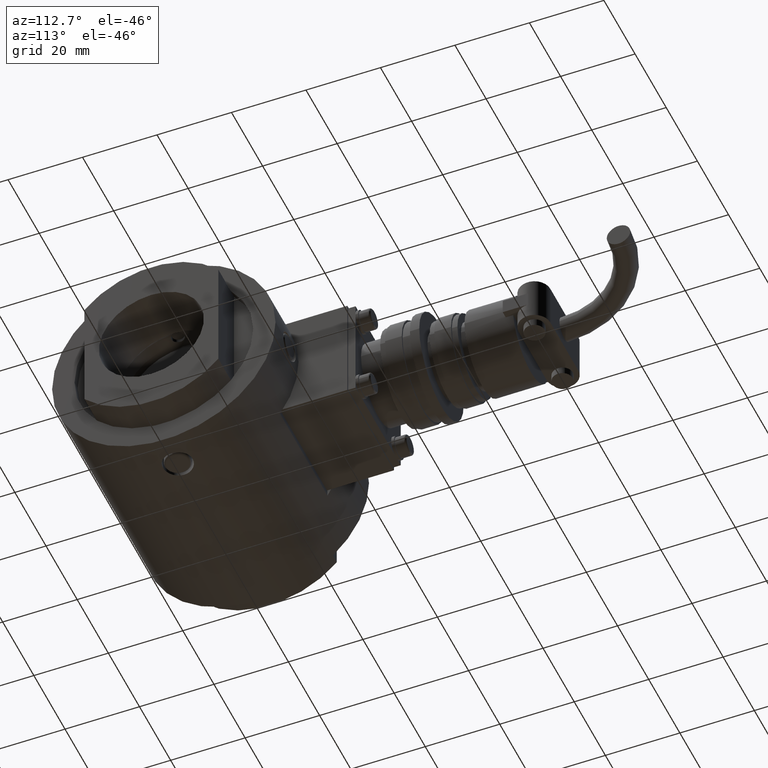
[diagram: clean part render]
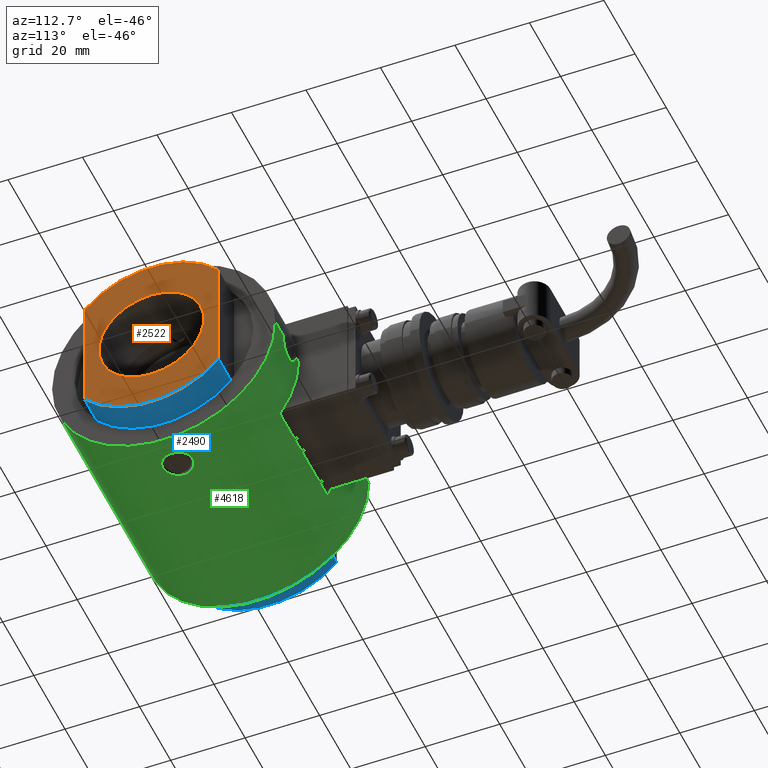
[diagram: same view with three faces highlighted in distinct colors, each labeled with its STEP entity id]
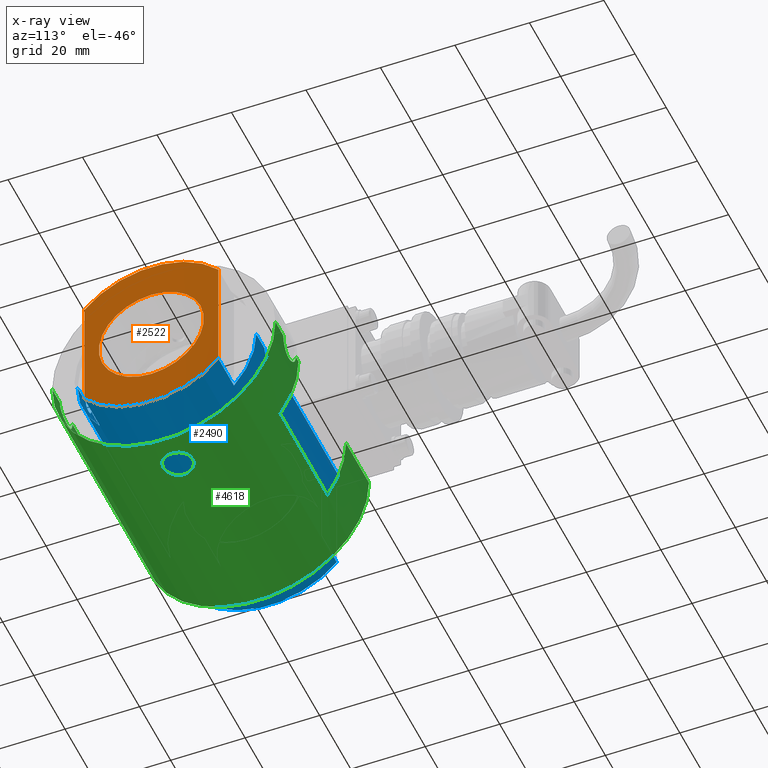
[diagram: x-ray of the same camera — body ghosted, the three highlighted faces saturated]
A machine part, auxiliary view with three faces highlighted in distinct colors.
The next image is the same camera in x-ray (body ghosted, the three faces saturated) — at least one of them is partly hidden behind the body in this view.
Their STEP definitions:

[orange] entity #2522 — the highlighted planar face has unit normal (1, 0, -0).
#171=CARTESIAN_POINT('',(41.999999999999972,18.0,-15.874507866387511));
#172=VERTEX_POINT('',#171);
#179=CARTESIAN_POINT('',(41.999999999999943,-17.999999999999972,-15.874507866387608));
#180=VERTEX_POINT('',#179);
#181=CARTESIAN_POINT('',(41.999999999999943,-2.842171E-014,0.0));
#182=DIRECTION('',(1.0,0.0,0.0));
#183=DIRECTION('',(0.0,1.0,0.0));
#184=AXIS2_PLACEMENT_3D('',#181,#182,#183);
#185=CIRCLE('',#184,24.0);
#186=EDGE_CURVE('',#180,#172,#185,.T.);
#1262=CARTESIAN_POINT('',(41.999999999999943,-2.842171E-014,-14.105000000000000));
#1263=VERTEX_POINT('',#1262);
#1270=CARTESIAN_POINT('',(41.999999999999943,-2.669440E-014,14.105000000000000));
#1271=VERTEX_POINT('',#1270);
#1272=CARTESIAN_POINT('',(41.999999999999943,-2.842171E-014,0.0));
#1273=DIRECTION('',(-1.0,0.0,0.0));
#1274=DIRECTION('',(0.0,0.0,-1.0));
#1275=AXIS2_PLACEMENT_3D('',#1272,#1273,#1274);
#1276=CIRCLE('',#1275,14.105000000000000);
#1277=EDGE_CURVE('',#1271,#1263,#1276,.T.);
#1841=CARTESIAN_POINT('',(41.999999999999943,-2.842171E-014,0.0));
#1842=DIRECTION('',(-1.0,0.0,0.0));
#1843=DIRECTION('',(0.0,0.0,-1.0));
#1844=AXIS2_PLACEMENT_3D('',#1841,#1842,#1843);
#1845=CIRCLE('',#1844,14.105000000000000);
#1846=EDGE_CURVE('',#1263,#1271,#1845,.T.);
#2289=CARTESIAN_POINT('',(41.999999999999943,-17.999999999999972,15.874507866387608));
#2290=VERTEX_POINT('',#2289);
#2291=CARTESIAN_POINT('',(41.999999999999943,-17.999999999999972,15.874507866387608));
#2292=DIRECTION('',(0.0,0.0,-1.0));
#2293=VECTOR('',#2292,31.749015732775216);
#2294=LINE('',#2291,#2293);
#2295=EDGE_CURVE('',#2290,#180,#2294,.T.);
#2432=CARTESIAN_POINT('',(41.999999999999972,18.0,15.874507866387511));
#2433=VERTEX_POINT('',#2432);
#2440=CARTESIAN_POINT('',(41.999999999999972,18.0,-15.874507866387511));
#2441=DIRECTION('',(0.0,0.0,1.0));
#2442=VECTOR('',#2441,31.749015732775021);
#2443=LINE('',#2440,#2442);
#2444=EDGE_CURVE('',#172,#2433,#2443,.T.);
#2475=CARTESIAN_POINT('',(41.999999999999943,-2.842171E-014,0.0));
#2476=DIRECTION('',(1.0,0.0,0.0));
#2477=DIRECTION('',(0.0,1.0,0.0));
#2478=AXIS2_PLACEMENT_3D('',#2475,#2476,#2477);
#2479=CIRCLE('',#2478,24.0);
#2480=EDGE_CURVE('',#2433,#2290,#2479,.T.);
#2507=CARTESIAN_POINT('',(41.999999999999943,9.499999999999975,0.0));
#2508=DIRECTION('',(1.0,0.0,0.0));
#2509=DIRECTION('',(0.0,0.0,-1.0));
#2510=AXIS2_PLACEMENT_3D('',#2507,#2508,#2509);
#2511=PLANE('',#2510);
#2512=ORIENTED_EDGE('',*,*,#2295,.T.);
#2513=ORIENTED_EDGE('',*,*,#186,.T.);
#2514=ORIENTED_EDGE('',*,*,#2444,.T.);
#2515=ORIENTED_EDGE('',*,*,#2480,.T.);
#2516=EDGE_LOOP('',(#2512,#2513,#2514,#2515));
#2517=FACE_OUTER_BOUND('',#2516,.T.);
#2518=ORIENTED_EDGE('',*,*,#1846,.T.);
#2519=ORIENTED_EDGE('',*,*,#1277,.T.);
#2520=EDGE_LOOP('',(#2518,#2519));
#2521=FACE_BOUND('',#2520,.T.);
#2522=ADVANCED_FACE('',(#2517,#2521),#2511,.T.);

[blue] entity #2490 — the highlighted cylindrical surface (partial cylindrical patch) has radius 24 mm, axis along (1, 0, -0).
#152=CARTESIAN_POINT('',(31.999999999999968,23.999999999999972,0.0));
#153=VERTEX_POINT('',#152);
#154=CARTESIAN_POINT('',(26.710999999999942,23.999999999999925,-5.151435E-014));
#155=VERTEX_POINT('',#154);
#156=CARTESIAN_POINT('',(31.999999999999968,23.999999999999972,0.0));
#157=DIRECTION('',(-1.0,0.0,0.0));
#158=VECTOR('',#157,5.289000000000026);
#159=LINE('',#156,#158);
#160=EDGE_CURVE('',#153,#155,#159,.T.);
#196=CARTESIAN_POINT('',(31.999999999999975,-24.000000000000028,-2.939055E-015));
#197=VERTEX_POINT('',#196);
#205=CARTESIAN_POINT('',(26.710999999999942,-23.999999999999982,5.151435E-014));
#206=VERTEX_POINT('',#205);
#207=CARTESIAN_POINT('',(31.999999999999975,-24.000000000000028,-2.939055E-015));
#208=DIRECTION('',(-1.0,0.0,0.0));
#209=VECTOR('',#208,5.289000000000034);
#210=LINE('',#207,#209);
#211=EDGE_CURVE('',#197,#206,#210,.T.);
#213=CARTESIAN_POINT('',(23.288999999999945,-23.999999999999982,5.151435E-014));
#214=VERTEX_POINT('',#213);
#252=CARTESIAN_POINT('',(-24.000000000000014,-24.000000000000028,-2.939055E-015));
#253=VERTEX_POINT('',#252);
#254=CARTESIAN_POINT('',(23.288999999999945,-23.999999999999982,5.151435E-014));
#255=DIRECTION('',(-1.0,0.0,0.0));
#256=VECTOR('',#255,47.288999999999959);
#257=LINE('',#254,#256);
#258=EDGE_CURVE('',#214,#253,#257,.T.);
#294=CARTESIAN_POINT('',(-24.000000000000014,23.999999999999972,0.0));
#295=VERTEX_POINT('',#294);
#303=CARTESIAN_POINT('',(23.288999999999945,23.999999999999925,-5.151435E-014));
#304=VERTEX_POINT('',#303);
#305=CARTESIAN_POINT('',(23.288999999999945,23.999999999999925,-5.151435E-014));
#306=DIRECTION('',(-1.0,0.0,0.0));
#307=VECTOR('',#306,47.288999999999959);
#308=LINE('',#305,#307);
#309=EDGE_CURVE('',#304,#295,#308,.T.);
#1151=CARTESIAN_POINT('',(26.710999999999942,2.842171E-014,23.999999999999954));
#1152=VERTEX_POINT('',#1151);
#1161=CARTESIAN_POINT('',(23.288999999999945,2.842171E-014,23.999999999999954));
#1162=VERTEX_POINT('',#1161);
#1163=CARTESIAN_POINT('',(23.288999999999945,2.842171E-014,23.999999999999954));
#1164=CARTESIAN_POINT('',(23.288999999999945,0.107457552573934,23.999999999999954));
#1165=CARTESIAN_POINT('',(23.299286205500231,0.218573954456432,23.999259147180929));
#1166=CARTESIAN_POINT('',(23.342603345747051,0.439588801994176,23.996228367647184));
#1167=CARTESIAN_POINT('',(23.375624890623364,0.549489114668587,23.993940394390005));
#1168=CARTESIAN_POINT('',(23.462943165792261,0.760255923911509,23.988187194264444));
#1169=CARTESIAN_POINT('',(23.517309414780307,0.861290967050378,23.984722610024971));
#1170=CARTESIAN_POINT('',(23.642936214653751,1.048127560892750,23.977284446447829));
#1171=CARTESIAN_POINT('',(23.714204683652646,1.133924088873096,23.973318440901018));
#1172=CARTESIAN_POINT('',(23.866075977586259,1.285795382806709,23.965652737863067));
#1173=CARTESIAN_POINT('',(23.951872536214818,1.357063858963572,23.961684770945734));
#1174=CARTESIAN_POINT('',(24.138709109839311,1.482690628596119,23.954239455248466));
#1175=CARTESIAN_POINT('',(24.239744101365691,1.537056844693317,23.950769730328034));
#1176=CARTESIAN_POINT('',(24.450510813647576,1.624375079665287,23.945006160533637));
#1177=CARTESIAN_POINT('',(24.560411080280137,1.657396622744442,23.942713042513528));
#1178=CARTESIAN_POINT('',(24.781425916302965,1.700713777604804,23.939675103223994));
#1179=CARTESIAN_POINT('',(24.892542353378431,1.711000000000029,23.938932286131724));
#1180=CARTESIAN_POINT('',(24.999999999999943,1.711000000000029,23.938932286131724));
#1181=CARTESIAN_POINT('',(25.107457646621455,1.711000000000029,23.938932286131724));
#1182=CARTESIAN_POINT('',(25.218574083696922,1.700713777604805,23.939675103223994));
#1183=CARTESIAN_POINT('',(25.439588919719750,1.657396622744442,23.942713042513528));
#1184=CARTESIAN_POINT('',(25.549489186352307,1.624375079665286,23.945006160533637));
#1185=CARTESIAN_POINT('',(25.760255898634195,1.537056844693317,23.950769730328034));
#1186=CARTESIAN_POINT('',(25.861290890160575,1.482690628596119,23.954239455248466));
#1187=CARTESIAN_POINT('',(26.048127463785068,1.357063858963572,23.961684770945734));
#1188=CARTESIAN_POINT('',(26.133924022413627,1.285795382806709,23.965652737863067));
#1189=CARTESIAN_POINT('',(26.285795316347240,1.133924088873097,23.973318440901018));
#1190=CARTESIAN_POINT('',(26.357063785346135,1.048127560892748,23.977284446447833));
#1191=CARTESIAN_POINT('',(26.482690585219579,0.861290967050376,23.984722610024974));
#1192=CARTESIAN_POINT('',(26.537056834207625,0.760255923911510,23.988187194264448));
#1193=CARTESIAN_POINT('',(26.624375109376523,0.549489114668588,23.993940394390005));
#1194=CARTESIAN_POINT('',(26.657396654252832,0.439588801994177,23.996228367647184));
#1195=CARTESIAN_POINT('',(26.700713794499652,0.218573954456434,23.999259147180929));
#1196=CARTESIAN_POINT('',(26.710999999999942,0.107457552573934,23.999999999999954));
#1197=CARTESIAN_POINT('',(26.710999999999942,2.842171E-014,23.999999999999954));
#1198=B_SPLINE_CURVE_WITH_KNOTS('',3,(#1163,#1164,#1165,#1166,#1167,#1168,#1169,#1170,#1171,#1172,#1173,#1174,#1175,#1176,#1177,#1178,#1179,#1180,#1181,#1182,#1183,#1184,#1185,#1186,#1187,#1188,#1189,#1190,#1191,#1192,#1193,#1194,#1195,#1196,#1197),.UNSPECIFIED.,.F.,.U.,(4,2,2,2,2,2,2,2,3,2,2,2,2,2,2,2,4),(7.736947171034997,8.059319828756713,8.381692486478428,8.704065144200145,9.026437801921862,9.348810741786394,9.671183681650927,9.993556621515459,10.315929561379994,10.638302501244526,10.960675441109061,11.283048380973593,11.605421320838126,11.927793978559842,12.250166636281559,12.572539294003276,12.894911951724993),.UNSPECIFIED.);
#1199=EDGE_CURVE('',#1162,#1152,#1198,.T.);
#1509=CARTESIAN_POINT('',(23.288999999999945,-23.999999999999982,5.151435E-014));
#1510=CARTESIAN_POINT('',(23.288999999999945,-23.999999999999982,0.107457552573957));
#1511=CARTESIAN_POINT('',(23.299286205500231,-23.999259147180958,0.218573954456455));
#1512=CARTESIAN_POINT('',(23.342603345747051,-23.996228367647213,0.439588801994199));
#1513=CARTESIAN_POINT('',(23.375624890623364,-23.993940394390034,0.549489114668610));
#1514=CARTESIAN_POINT('',(23.462943165792261,-23.988187194264473,0.760255923911532));
#1515=CARTESIAN_POINT('',(23.517309414780307,-23.984722610025003,0.861290967050400));
#1516=CARTESIAN_POINT('',(23.642936214653751,-23.977284446447861,1.048127560892773));
#1517=CARTESIAN_POINT('',(23.714204683652646,-23.973318440901046,1.133924088873119));
#1518=CARTESIAN_POINT('',(23.866075977586256,-23.965652737863092,1.285795382806731));
#1519=CARTESIAN_POINT('',(23.951872536214815,-23.961684770945766,1.357063858963590));
#1520=CARTESIAN_POINT('',(24.138709109839308,-23.954239455248498,1.482690628596139));
#1521=CARTESIAN_POINT('',(24.239744101365687,-23.950769730328062,1.537056844693340));
#1522=CARTESIAN_POINT('',(24.450510813647579,-23.945006160533666,1.624375079665310));
#1523=CARTESIAN_POINT('',(24.560411080280133,-23.942713042513557,1.657396622744465));
#1524=CARTESIAN_POINT('',(24.781425916302958,-23.939675103224022,1.700713777604826));
#1525=CARTESIAN_POINT('',(24.892542353378431,-23.938932286131752,1.711000000000052));
#1526=CARTESIAN_POINT('',(24.999999999999943,-23.938932286131752,1.711000000000052));
#1527=CARTESIAN_POINT('',(25.107457646621455,-23.938932286131752,1.711000000000052));
#1528=CARTESIAN_POINT('',(25.218574083696922,-23.939675103224022,1.700713777604828));
#1529=CARTESIAN_POINT('',(25.439588919719750,-23.942713042513557,1.657396622744465));
#1530=CARTESIAN_POINT('',(25.549489186352307,-23.945006160533666,1.624375079665309));
#1531=CARTESIAN_POINT('',(25.760255898634195,-23.950769730328062,1.537056844693340));
#1532=CARTESIAN_POINT('',(25.861290890160575,-23.954239455248494,1.482690628596142));
#1533=CARTESIAN_POINT('',(26.048127463785068,-23.961684770945762,1.357063858963595));
#1534=CARTESIAN_POINT('',(26.133924022413627,-23.965652737863095,1.285795382806732));
#1535=CARTESIAN_POINT('',(26.285795316347240,-23.973318440901046,1.133924088873120));
#1536=CARTESIAN_POINT('',(26.357063785346135,-23.977284446447861,1.048127560892771));
#1537=CARTESIAN_POINT('',(26.482690585219579,-23.984722610025003,0.861290967050399));
#1538=CARTESIAN_POINT('',(26.537056834207625,-23.988187194264476,0.760255923911533));
#1539=CARTESIAN_POINT('',(26.624375109376523,-23.993940394390034,0.549489114668611));
#1540=CARTESIAN_POINT('',(26.657396654252832,-23.996228367647213,0.439588801994200));
#1541=CARTESIAN_POINT('',(26.700713794499652,-23.999259147180958,0.218573954456457));
#1542=CARTESIAN_POINT('',(26.710999999999942,-23.999999999999982,0.107457552573957));
#1543=CARTESIAN_POINT('',(26.710999999999942,-23.999999999999982,5.151435E-014));
#1544=B_SPLINE_CURVE_WITH_KNOTS('',3,(#1509,#1510,#1511,#1512,#1513,#1514,#1515,#1516,#1517,#1518,#1519,#1520,#1521,#1522,#1523,#1524,#1525,#1526,#1527,#1528,#1529,#1530,#1531,#1532,#1533,#1534,#1535,#1536,#1537,#1538,#1539,#1540,#1541,#1542,#1543),.UNSPECIFIED.,.F.,.U.,(4,2,2,2,2,2,2,2,3,2,2,2,2,2,2,2,4),(7.736947171034997,8.059319828756713,8.381692486478428,8.704065144200145,9.026437801921862,9.348810741786394,9.671183681650929,9.993556621515463,10.315929561379996,10.638302501244528,10.960675441109062,11.283048380973595,11.605421320838127,11.927793978559844,12.250166636281561,12.572539294003278,12.894911951724994),.UNSPECIFIED.);
#1545=EDGE_CURVE('',#214,#206,#1544,.T.);
#1678=CARTESIAN_POINT('',(26.710999999999942,23.999999999999925,-5.151435E-014));
#1679=CARTESIAN_POINT('',(26.710999999999942,23.999999999999925,0.107457552573854));
#1680=CARTESIAN_POINT('',(26.700713794499652,23.999259147180901,0.218573954456354));
#1681=CARTESIAN_POINT('',(26.657396654252832,23.996228367647156,0.439588801994097));
#1682=CARTESIAN_POINT('',(26.624375109376523,23.993940394389980,0.549489114668507));
#1683=CARTESIAN_POINT('',(26.537056834207625,23.988187194264420,0.760255923911429));
#1684=CARTESIAN_POINT('',(26.482690585219579,23.984722610024946,0.861290967050297));
#1685=CARTESIAN_POINT('',(26.357063785346135,23.977284446447804,1.048127560892670));
#1686=CARTESIAN_POINT('',(26.285795316347240,23.973318440900997,1.133924088873017));
#1687=CARTESIAN_POINT('',(26.133924022413627,23.965652737863046,1.285795382806630));
#1688=CARTESIAN_POINT('',(26.048127463785068,23.961684770945713,1.357063858963492));
#1689=CARTESIAN_POINT('',(25.861290890160575,23.954239455248445,1.482690628596039));
#1690=CARTESIAN_POINT('',(25.760255898634195,23.950769730328012,1.537056844693236));
#1691=CARTESIAN_POINT('',(25.549489186352307,23.945006160533616,1.624375079665207));
#1692=CARTESIAN_POINT('',(25.439588919719746,23.942713042513507,1.657396622744364));
#1693=CARTESIAN_POINT('',(25.218574083696922,23.939675103223973,1.700713777604724));
#1694=CARTESIAN_POINT('',(25.107457646621455,23.938932286131703,1.710999999999949));
#1695=CARTESIAN_POINT('',(24.892542353378431,23.938932286131703,1.710999999999949));
#1696=CARTESIAN_POINT('',(24.781425916302968,23.939675103223973,1.700713777604724));
#1697=CARTESIAN_POINT('',(24.560411080280144,23.942713042513507,1.657396622744364));
#1698=CARTESIAN_POINT('',(24.450510813647583,23.945006160533616,1.624375079665207));
#1699=CARTESIAN_POINT('',(24.239744101365691,23.950769730328012,1.537056844693237));
#1700=CARTESIAN_POINT('',(24.138709109839311,23.954239455248445,1.482690628596039));
#1701=CARTESIAN_POINT('',(23.951872536214818,23.961684770945713,1.357063858963492));
#1702=CARTESIAN_POINT('',(23.866075977586259,23.965652737863046,1.285795382806629));
#1703=CARTESIAN_POINT('',(23.714204683652646,23.973318440900997,1.133924088873017));
#1704=CARTESIAN_POINT('',(23.642936214653751,23.977284446447804,1.048127560892669));
#1705=CARTESIAN_POINT('',(23.517309414780307,23.984722610024946,0.861290967050297));
#1706=CARTESIAN_POINT('',(23.462943165792261,23.988187194264420,0.760255923911430));
#1707=CARTESIAN_POINT('',(23.375624890623364,23.993940394389980,0.549489114668508));
#1708=CARTESIAN_POINT('',(23.342603345747055,23.996228367647156,0.439588801994098));
#1709=CARTESIAN_POINT('',(23.299286205500234,23.999259147180901,0.218573954456354));
#1710=CARTESIAN_POINT('',(23.288999999999945,23.999999999999925,0.107457552573854));
#1711=CARTESIAN_POINT('',(23.288999999999945,23.999999999999925,-5.151435E-014));
#1712=B_SPLINE_CURVE_WITH_KNOTS('',3,(#1678,#1679,#1680,#1681,#1682,#1683,#1684,#1685,#1686,#1687,#1688,#1689,#1690,#1691,#1692,#1693,#1694,#1695,#1696,#1697,#1698,#1699,#1700,#1701,#1702,#1703,#1704,#1705,#1706,#1707,#1708,#1709,#1710,#1711),.UNSPECIFIED.,.F.,.U.,(4,2,2,2,2,2,2,2,2,2,2,2,2,2,2,2,4),(2.578982390344999,2.901355048066716,3.223727705788432,3.546100363510149,3.868473021231865,4.190845961096398,4.513218900960932,4.835591840825465,5.157964780689998,5.480337720554531,5.802710660419065,6.125083600283597,6.447456540148131,6.769829197869846,7.092201855591563,7.414574513313280,7.736947171034997),.UNSPECIFIED.);
#1713=EDGE_CURVE('',#155,#304,#1712,.T.);
#1892=CARTESIAN_POINT('',(26.710999999999942,2.842171E-014,23.999999999999954));
#1893=CARTESIAN_POINT('',(26.710999999999942,-0.107457552573877,23.999999999999954));
#1894=CARTESIAN_POINT('',(26.700713794499652,-0.218573954456377,23.999259147180929));
#1895=CARTESIAN_POINT('',(26.657396654252832,-0.439588801994120,23.996228367647184));
#1896=CARTESIAN_POINT('',(26.624375109376523,-0.549489114668531,23.993940394390009));
#1897=CARTESIAN_POINT('',(26.537056834207625,-0.760255923911453,23.988187194264448));
#1898=CARTESIAN_POINT('',(26.482690585219579,-0.861290967050321,23.984722610024974));
#1899=CARTESIAN_POINT('',(26.357063785346135,-1.048127560892693,23.977284446447833));
#1900=CARTESIAN_POINT('',(26.285795316347240,-1.133924088873040,23.973318440901025));
#1901=CARTESIAN_POINT('',(26.133924022413627,-1.285795382806652,23.965652737863074));
#1902=CARTESIAN_POINT('',(26.048127463785068,-1.357063858963515,23.961684770945741));
#1903=CARTESIAN_POINT('',(25.861290890160575,-1.482690628596062,23.954239455248473));
#1904=CARTESIAN_POINT('',(25.760255898634195,-1.537056844693260,23.950769730328041));
#1905=CARTESIAN_POINT('',(25.549489186352307,-1.624375079665229,23.945006160533644));
#1906=CARTESIAN_POINT('',(25.439588919719750,-1.657396622744386,23.942713042513535));
#1907=CARTESIAN_POINT('',(25.218574083696922,-1.700713777604748,23.939675103224001));
#1908=CARTESIAN_POINT('',(25.107457646621455,-1.710999999999972,23.938932286131731));
#1909=CARTESIAN_POINT('',(24.892542353378431,-1.710999999999972,23.938932286131731));
#1910=CARTESIAN_POINT('',(24.781425916302968,-1.700713777604747,23.939675103224001));
#1911=CARTESIAN_POINT('',(24.560411080280144,-1.657396622744387,23.942713042513535));
#1912=CARTESIAN_POINT('',(24.450510813647583,-1.624375079665230,23.945006160533644));
#1913=CARTESIAN_POINT('',(24.239744101365691,-1.537056844693260,23.950769730328041));
#1914=CARTESIAN_POINT('',(24.138709109839311,-1.482690628596062,23.954239455248473));
#1915=CARTESIAN_POINT('',(23.951872536214818,-1.357063858963515,23.961684770945741));
#1916=CARTESIAN_POINT('',(23.866075977586259,-1.285795382806652,23.965652737863074));
#1917=CARTESIAN_POINT('',(23.714204683652646,-1.133924088873040,23.973318440901025));
#1918=CARTESIAN_POINT('',(23.642936214653751,-1.048127560892692,23.977284446447833));
#1919=CARTESIAN_POINT('',(23.517309414780307,-0.861290967050320,23.984722610024974));
#1920=CARTESIAN_POINT('',(23.462943165792261,-0.760255923911453,23.988187194264448));
#1921=CARTESIAN_POINT('',(23.375624890623364,-0.549489114668531,23.993940394390009));
#1922=CARTESIAN_POINT('',(23.342603345747055,-0.439588801994121,23.996228367647184));
#1923=CARTESIAN_POINT('',(23.299286205500234,-0.218573954456377,23.999259147180929));
#1924=CARTESIAN_POINT('',(23.288999999999945,-0.107457552573877,23.999999999999954));
#1925=CARTESIAN_POINT('',(23.288999999999945,2.842171E-014,23.999999999999954));
#1926=B_SPLINE_CURVE_WITH_KNOTS('',3,(#1892,#1893,#1894,#1895,#1896,#1897,#1898,#1899,#1900,#1901,#1902,#1903,#1904,#1905,#1906,#1907,#1908,#1909,#1910,#1911,#1912,#1913,#1914,#1915,#1916,#1917,#1918,#1919,#1920,#1921,#1922,#1923,#1924,#1925),.UNSPECIFIED.,.F.,.U.,(4,2,2,2,2,2,2,2,2,2,2,2,2,2,2,2,4),(2.578982390344999,2.901355048066716,3.223727705788432,3.546100363510148,3.868473021231865,4.190845961096398,4.513218900960931,4.835591840825464,5.157964780689998,5.480337720554531,5.802710660419065,6.125083600283597,6.447456540148131,6.769829197869846,7.092201855591563,7.414574513313280,7.736947171034997),.UNSPECIFIED.);
#1927=EDGE_CURVE('',#1152,#1162,#1926,.T.);
#2265=CARTESIAN_POINT('',(31.999999999999972,-18.0,15.874507866387576));
#2266=VERTEX_POINT('',#2265);
#2273=CARTESIAN_POINT('',(31.999999999999972,-2.842171E-014,0.0));
#2274=DIRECTION('',(-1.0,0.0,0.0));
#2275=DIRECTION('',(0.0,1.0,0.0));
#2276=AXIS2_PLACEMENT_3D('',#2273,#2274,#2275);
#2277=CIRCLE('',#2276,24.0);
#2278=EDGE_CURVE('',#197,#2266,#2277,.T.);
#2289=CARTESIAN_POINT('',(41.999999999999943,-17.999999999999972,15.874507866387608));
#2290=VERTEX_POINT('',#2289);
#2297=CARTESIAN_POINT('',(31.999999999999972,-18.0,15.874507866387576));
#2298=DIRECTION('',(1.0,0.0,0.0));
#2299=VECTOR('',#2298,9.999999999999972);
#2300=LINE('',#2297,#2299);
#2301=EDGE_CURVE('',#2266,#2290,#2300,.T.);
#2313=CARTESIAN_POINT('',(-24.000000000000014,18.0,15.874507866387511));
#2314=VERTEX_POINT('',#2313);
#2321=CARTESIAN_POINT('',(-24.000000000000014,-2.842171E-014,0.0));
#2322=DIRECTION('',(1.0,0.0,0.0));
#2323=DIRECTION('',(0.0,1.0,0.0));
#2324=AXIS2_PLACEMENT_3D('',#2321,#2322,#2323);
#2325=CIRCLE('',#2324,24.0);
#2326=EDGE_CURVE('',#295,#2314,#2325,.T.);
#2337=CARTESIAN_POINT('',(-34.000000000000028,18.0,15.874507866387511));
#2338=VERTEX_POINT('',#2337);
#2345=CARTESIAN_POINT('',(-24.000000000000014,18.0,15.874507866387511));
#2346=DIRECTION('',(-1.0,0.0,0.0));
#2347=VECTOR('',#2346,10.000000000000014);
#2348=LINE('',#2345,#2347);
#2349=EDGE_CURVE('',#2314,#2338,#2348,.T.);
#2360=CARTESIAN_POINT('',(-24.000000000000014,-18.0,15.874507866387576));
#2361=VERTEX_POINT('',#2360);
#2362=CARTESIAN_POINT('',(-24.000000000000014,-2.842171E-014,0.0));
#2363=DIRECTION('',(1.0,0.0,0.0));
#2364=DIRECTION('',(0.0,1.0,0.0));
#2365=AXIS2_PLACEMENT_3D('',#2362,#2363,#2364);
#2366=CIRCLE('',#2365,24.0);
#2367=EDGE_CURVE('',#2361,#253,#2366,.T.);
#2384=CARTESIAN_POINT('',(-34.000000000000028,-18.0,15.874507866387576));
#2385=VERTEX_POINT('',#2384);
#2386=CARTESIAN_POINT('',(-34.000000000000028,-18.0,15.874507866387576));
#2387=DIRECTION('',(1.0,0.0,0.0));
#2388=VECTOR('',#2387,10.000000000000014);
#2389=LINE('',#2386,#2388);
#2390=EDGE_CURVE('',#2385,#2361,#2389,.T.);
#2408=CARTESIAN_POINT('',(31.999999999999972,18.0,15.874507866387511));
#2409=VERTEX_POINT('',#2408);
#2410=CARTESIAN_POINT('',(31.999999999999972,-2.842171E-014,0.0));
#2411=DIRECTION('',(-1.0,0.0,0.0));
#2412=DIRECTION('',(0.0,1.0,0.0));
#2413=AXIS2_PLACEMENT_3D('',#2410,#2411,#2412);
#2414=CIRCLE('',#2413,24.0);
#2415=EDGE_CURVE('',#2409,#153,#2414,.T.);
#2432=CARTESIAN_POINT('',(41.999999999999972,18.0,15.874507866387511));
#2433=VERTEX_POINT('',#2432);
#2434=CARTESIAN_POINT('',(41.999999999999972,18.0,15.874507866387511));
#2435=DIRECTION('',(-1.0,0.0,0.0));
#2436=VECTOR('',#2435,10.0);
#2437=LINE('',#2434,#2436);
#2438=EDGE_CURVE('',#2433,#2409,#2437,.T.);
#2451=CARTESIAN_POINT('',(3.999999999999957,-2.842171E-014,0.0));
#2452=DIRECTION('',(1.0,0.0,0.0));
#2453=DIRECTION('',(0.0,1.0,0.0));
#2454=AXIS2_PLACEMENT_3D('',#2451,#2452,#2453);
#2455=CYLINDRICAL_SURFACE('',#2454,24.0);
#2456=ORIENTED_EDGE('',*,*,#160,.T.);
#2457=ORIENTED_EDGE('',*,*,#1713,.T.);
#2458=ORIENTED_EDGE('',*,*,#309,.T.);
#2459=ORIENTED_EDGE('',*,*,#2326,.T.);
#2460=ORIENTED_EDGE('',*,*,#2349,.T.);
#2461=CARTESIAN_POINT('',(-34.000000000000028,-2.842171E-014,0.0));
#2462=DIRECTION('',(1.0,0.0,0.0));
#2463=DIRECTION('',(0.0,1.0,0.0));
#2464=AXIS2_PLACEMENT_3D('',#2461,#2462,#2463);
#2465=CIRCLE('',#2464,24.0);
#2466=EDGE_CURVE('',#2338,#2385,#2465,.T.);
#2467=ORIENTED_EDGE('',*,*,#2466,.T.);
#2468=ORIENTED_EDGE('',*,*,#2390,.T.);
#2469=ORIENTED_EDGE('',*,*,#2367,.T.);
#2470=ORIENTED_EDGE('',*,*,#258,.F.);
#2471=ORIENTED_EDGE('',*,*,#1545,.T.);
#2472=ORIENTED_EDGE('',*,*,#211,.F.);
#2473=ORIENTED_EDGE('',*,*,#2278,.T.);
#2474=ORIENTED_EDGE('',*,*,#2301,.T.);
#2475=CARTESIAN_POINT('',(41.999999999999943,-2.842171E-014,0.0));
#2476=DIRECTION('',(1.0,0.0,0.0));
#2477=DIRECTION('',(0.0,1.0,0.0));
#2478=AXIS2_PLACEMENT_3D('',#2475,#2476,#2477);
#2479=CIRCLE('',#2478,24.0);
#2480=EDGE_CURVE('',#2433,#2290,#2479,.T.);
#2481=ORIENTED_EDGE('',*,*,#2480,.F.);
#2482=ORIENTED_EDGE('',*,*,#2438,.T.);
#2483=ORIENTED_EDGE('',*,*,#2415,.T.);
#2484=EDGE_LOOP('',(#2456,#2457,#2458,#2459,#2460,#2467,#2468,#2469,#2470,#2471,#2472,#2473,#2474,#2481,#2482,#2483));
#2485=FACE_OUTER_BOUND('',#2484,.T.);
#2486=ORIENTED_EDGE('',*,*,#1927,.T.);
#2487=ORIENTED_EDGE('',*,*,#1199,.T.);
#2488=EDGE_LOOP('',(#2486,#2487));
#2489=FACE_BOUND('',#2488,.T.);
#2490=ADVANCED_FACE('',(#2485,#2489),#2455,.T.);

[green] entity #4618 — the highlighted cylindrical surface (partial cylindrical patch) has radius 30 mm, axis along (-1, 0, 0).
#2578=CARTESIAN_POINT('',(26.0,25.0,0.0));
#2579=VERTEX_POINT('',#2578);
#2580=CARTESIAN_POINT('',(11.249999999999996,25.0,0.0));
#2581=VERTEX_POINT('',#2580);
#2582=CARTESIAN_POINT('',(26.0,25.0,0.0));
#2583=DIRECTION('',(-1.0,0.0,0.0));
#2584=VECTOR('',#2583,14.750000000000004);
#2585=LINE('',#2582,#2584);
#2586=EDGE_CURVE('',#2579,#2581,#2585,.T.);
#2588=CARTESIAN_POINT('',(26.0,-35.0,-3.673819E-015));
#2589=VERTEX_POINT('',#2588);
#2597=CARTESIAN_POINT('',(-21.0,-35.0,-3.673940E-015));
#2598=VERTEX_POINT('',#2597);
#2599=CARTESIAN_POINT('',(26.0,-35.0,-3.673819E-015));
#2600=DIRECTION('',(-1.0,0.0,0.0));
#2601=VECTOR('',#2600,47.0);
#2602=LINE('',#2599,#2601);
#2603=EDGE_CURVE('',#2589,#2598,#2602,.T.);
#2628=CARTESIAN_POINT('',(-29.0,-35.0,-3.673940E-015));
#2629=VERTEX_POINT('',#2628);
#2651=CARTESIAN_POINT('',(-34.0,-35.0,-3.673819E-015));
#2652=VERTEX_POINT('',#2651);
#2653=CARTESIAN_POINT('',(-29.0,-35.0,-3.673940E-015));
#2654=DIRECTION('',(-1.0,0.0,0.0));
#2655=VECTOR('',#2654,5.0);
#2656=LINE('',#2653,#2655);
#2657=EDGE_CURVE('',#2629,#2652,#2656,.T.);
#2659=CARTESIAN_POINT('',(-34.0,25.0,0.0));
#2660=VERTEX_POINT('',#2659);
#2668=CARTESIAN_POINT('',(-29.0,25.0,0.0));
#2669=VERTEX_POINT('',#2668);
#2670=CARTESIAN_POINT('',(-29.0,25.0,0.0));
#2671=DIRECTION('',(-1.0,0.0,0.0));
#2672=VECTOR('',#2671,5.0);
#2673=LINE('',#2670,#2672);
#2674=EDGE_CURVE('',#2669,#2660,#2673,.T.);
#2699=CARTESIAN_POINT('',(-21.0,25.0,0.0));
#2700=VERTEX_POINT('',#2699);
#2722=CARTESIAN_POINT('',(-19.250000000000000,25.0,0.0));
#2723=VERTEX_POINT('',#2722);
#2724=CARTESIAN_POINT('',(-19.250000000000000,25.0,0.0));
#2725=DIRECTION('',(-1.0,0.0,0.0));
#2726=VECTOR('',#2725,1.750000000000000);
#2727=LINE('',#2724,#2726);
#2728=EDGE_CURVE('',#2723,#2700,#2727,.T.);
#3538=CARTESIAN_POINT('',(-25.0,24.732137494637009,4.0));
#3539=VERTEX_POINT('',#3538);
#3548=CARTESIAN_POINT('',(-21.0,25.0,0.0));
#3549=CARTESIAN_POINT('',(-21.0,25.0,0.251444888649446));
#3550=CARTESIAN_POINT('',(-21.024091279223548,24.996755240982299,0.511383157657883));
#3551=CARTESIAN_POINT('',(-21.125465439016388,24.983487003611305,1.028272738920401));
#3552=CARTESIAN_POINT('',(-21.202725594924562,24.973472053691488,1.285228726637178));
#3553=CARTESIAN_POINT('',(-21.406926518888103,24.948287281952808,1.777900085725491));
#3554=CARTESIAN_POINT('',(-21.534029764993917,24.933119830535642,2.014013514728856));
#3555=CARTESIAN_POINT('',(-21.827642899419743,24.900544521686616,2.450581672475364));
#3556=CARTESIAN_POINT('',(-21.994171804720388,24.883169414439401,2.651026054212769));
#3557=CARTESIAN_POINT('',(-22.348975868248534,24.849568495770548,3.005830117740914));
#3558=CARTESIAN_POINT('',(-22.549421137299074,24.832163113590582,3.172359231084941));
#3559=CARTESIAN_POINT('',(-22.985988715808141,24.799477524410754,3.465971494351077));
#3560=CARTESIAN_POINT('',(-23.222100676171827,24.784230825182107,3.593073760987264));
#3561=CARTESIAN_POINT('',(-23.714769203836184,24.758886040934357,3.797273583217743));
#3562=CARTESIAN_POINT('',(-23.971723860490375,24.748791621607801,3.874533649912392));
#3563=CARTESIAN_POINT('',(-24.488613100838482,24.735412687373675,3.975908231112520));
#3564=CARTESIAN_POINT('',(-24.748552386490626,24.732137494637009,4.0));
#3565=CARTESIAN_POINT('',(-25.0,24.732137494637009,4.0));
#3566=B_SPLINE_CURVE_WITH_KNOTS('',3,(#3548,#3549,#3550,#3551,#3552,#3553,#3554,#3555,#3556,#3557,#3558,#3559,#3560,#3561,#3562,#3563,#3564,#3565),.UNSPECIFIED.,.F.,.U.,(4,2,2,2,2,2,2,2,4),(6.034710025905850,6.789044691854187,7.543379357802525,8.297714023750864,9.052048689699200,9.806391530227327,10.560734370755451,11.315077211283576,12.069420051811701),.UNSPECIFIED.);
#3567=EDGE_CURVE('',#2700,#3539,#3566,.T.);
#3762=CARTESIAN_POINT('',(-25.0,-34.732137494637016,3.999999999999996));
#3763=VERTEX_POINT('',#3762);
#3764=CARTESIAN_POINT('',(-25.0,-34.732137494637016,3.999999999999996));
#3765=CARTESIAN_POINT('',(-24.748552386490626,-34.732137494637016,3.999999999999996));
#3766=CARTESIAN_POINT('',(-24.488613100838485,-34.735412687373675,3.975908231112517));
#3767=CARTESIAN_POINT('',(-23.971723860490386,-34.748791621607801,3.874533649912392));
#3768=CARTESIAN_POINT('',(-23.714769203836191,-34.758886040934350,3.797273583217742));
#3769=CARTESIAN_POINT('',(-23.222100676171834,-34.784230825182100,3.593073760987264));
#3770=CARTESIAN_POINT('',(-22.985988715808151,-34.799477524410761,3.465971494351080));
#3771=CARTESIAN_POINT('',(-22.549421137299085,-34.832163113590582,3.172359231084945));
#3772=CARTESIAN_POINT('',(-22.348975868248534,-34.849568495770548,3.005830117740912));
#3773=CARTESIAN_POINT('',(-21.994171804720388,-34.883169414439401,2.651026054212766));
#3774=CARTESIAN_POINT('',(-21.827642899419740,-34.900544521686619,2.450581672475360));
#3775=CARTESIAN_POINT('',(-21.534029764993914,-34.933119830535638,2.014013514728851));
#3776=CARTESIAN_POINT('',(-21.406926518888103,-34.948287281952808,1.777900085725487));
#3777=CARTESIAN_POINT('',(-21.202725594924562,-34.973472053691488,1.285228726637174));
#3778=CARTESIAN_POINT('',(-21.125465439016388,-34.983487003611302,1.028272738920397));
#3779=CARTESIAN_POINT('',(-21.024091279223548,-34.996755240982296,0.511383157657880));
#3780=CARTESIAN_POINT('',(-21.0,-35.0,0.251444888649442));
#3781=CARTESIAN_POINT('',(-21.0,-35.0,-3.673940E-015));
#3782=B_SPLINE_CURVE_WITH_KNOTS('',3,(#3764,#3765,#3766,#3767,#3768,#3769,#3770,#3771,#3772,#3773,#3774,#3775,#3776,#3777,#3778,#3779,#3780,#3781),.UNSPECIFIED.,.F.,.U.,(4,2,2,2,2,2,2,2,4),(24.138840103623398,24.893182944151523,25.647525784679647,26.401868625207772,27.156211465735897,27.910546131684235,28.664880797632573,29.419215463580912,30.173550129529247),.UNSPECIFIED.);
#3783=EDGE_CURVE('',#3763,#2598,#3782,.T.);
#3840=CARTESIAN_POINT('',(-25.0,-9.000000000000005,29.732137494637009));
#3841=VERTEX_POINT('',#3840);
#3850=CARTESIAN_POINT('',(-21.0,-5.000000000000007,30.0));
#3851=VERTEX_POINT('',#3850);
#3852=CARTESIAN_POINT('',(-21.0,-5.000000000000007,30.0));
#3853=CARTESIAN_POINT('',(-21.0,-5.251444888649453,30.0));
#3854=CARTESIAN_POINT('',(-21.024091279223548,-5.511383157657888,29.996755240982299));
#3855=CARTESIAN_POINT('',(-21.125465439016388,-6.028272738920405,29.983487003611305));
#3856=CARTESIAN_POINT('',(-21.202725594924562,-6.285228726637183,29.973472053691488));
#3857=CARTESIAN_POINT('',(-21.406926518888106,-6.777900085725497,29.948287281952808));
#3858=CARTESIAN_POINT('',(-21.534029764993917,-7.014013514728862,29.933119830535642));
#3859=CARTESIAN_POINT('',(-21.827642899419743,-7.450581672475368,29.900544521686616));
#3860=CARTESIAN_POINT('',(-21.994171804720388,-7.651026054212774,29.883169414439408));
#3861=CARTESIAN_POINT('',(-22.348975868248534,-8.005830117740919,29.849568495770548));
#3862=CARTESIAN_POINT('',(-22.549421137299078,-8.172359231084947,29.832163113590582));
#3863=CARTESIAN_POINT('',(-22.985988715808144,-8.465971494351082,29.799477524410754));
#3864=CARTESIAN_POINT('',(-23.222100676171834,-8.593073760987270,29.784230825182107));
#3865=CARTESIAN_POINT('',(-23.714769203836191,-8.797273583217748,29.758886040934357));
#3866=CARTESIAN_POINT('',(-23.971723860490386,-8.874533649912399,29.748791621607801));
#3867=CARTESIAN_POINT('',(-24.488613100838485,-8.975908231112525,29.735412687373675));
#3868=CARTESIAN_POINT('',(-24.748552386490626,-9.000000000000005,29.732137494637009));
#3869=CARTESIAN_POINT('',(-25.0,-9.000000000000005,29.732137494637009));
#3870=B_SPLINE_CURVE_WITH_KNOTS('',3,(#3852,#3853,#3854,#3855,#3856,#3857,#3858,#3859,#3860,#3861,#3862,#3863,#3864,#3865,#3866,#3867,#3868,#3869),.UNSPECIFIED.,.F.,.U.,(4,2,2,2,2,2,2,2,4),(6.034710025905850,6.789044691854187,7.543379357802523,8.297714023750860,9.052048689699198,9.806391530227323,10.560734370755448,11.315077211283572,12.069420051811697),.UNSPECIFIED.);
#3871=EDGE_CURVE('',#3851,#3841,#3870,.T.);
#3873=CARTESIAN_POINT('',(-25.0,-1.000000000000006,29.732137494637009));
#3874=VERTEX_POINT('',#3873);
#3875=CARTESIAN_POINT('',(-25.0,-1.000000000000006,29.732137494637009));
#3876=CARTESIAN_POINT('',(-24.748552386490626,-1.000000000000006,29.732137494637009));
#3877=CARTESIAN_POINT('',(-24.488613100838485,-1.024091768887485,29.735412687373675));
#3878=CARTESIAN_POINT('',(-23.971723860490386,-1.125466350087611,29.748791621607801));
#3879=CARTESIAN_POINT('',(-23.714769203836191,-1.202726416782260,29.758886040934357));
#3880=CARTESIAN_POINT('',(-23.222100676171834,-1.406926239012738,29.784230825182107));
#3881=CARTESIAN_POINT('',(-22.985988715808144,-1.534028505648927,29.799477524410754));
#3882=CARTESIAN_POINT('',(-22.549421137299078,-1.827640768915063,29.832163113590582));
#3883=CARTESIAN_POINT('',(-22.348975868248534,-1.994169882259090,29.849568495770548));
#3884=CARTESIAN_POINT('',(-21.994171804720388,-2.348973945787236,29.883169414439404));
#3885=CARTESIAN_POINT('',(-21.827642899419740,-2.549418327524642,29.900544521686616));
#3886=CARTESIAN_POINT('',(-21.534029764993914,-2.985986485271151,29.933119830535642));
#3887=CARTESIAN_POINT('',(-21.406926518888103,-3.222099914274514,29.948287281952808));
#3888=CARTESIAN_POINT('',(-21.202725594924562,-3.714771273362829,29.973472053691488));
#3889=CARTESIAN_POINT('',(-21.125465439016388,-3.971727261079604,29.983487003611305));
#3890=CARTESIAN_POINT('',(-21.024091279223548,-4.488616842342123,29.996755240982299));
#3891=CARTESIAN_POINT('',(-21.0,-4.748555111350562,30.0));
#3892=CARTESIAN_POINT('',(-21.0,-5.000000000000007,30.0));
#3893=B_SPLINE_CURVE_WITH_KNOTS('',3,(#3875,#3876,#3877,#3878,#3879,#3880,#3881,#3882,#3883,#3884,#3885,#3886,#3887,#3888,#3889,#3890,#3891,#3892),.UNSPECIFIED.,.F.,.U.,(4,2,2,2,2,2,2,2,4),(24.138840103623391,24.893182944151516,25.647525784679640,26.401868625207765,27.156211465735890,27.910546131684228,28.664880797632563,29.419215463580905,30.173550129529239),.UNSPECIFIED.);
#3894=EDGE_CURVE('',#3874,#3851,#3893,.T.);
#3948=CARTESIAN_POINT('',(-29.0,-5.000000000000007,30.0));
#3949=VERTEX_POINT('',#3948);
#3950=CARTESIAN_POINT('',(-29.0,-5.000000000000007,30.0));
#3951=CARTESIAN_POINT('',(-29.0,-4.748555111350562,30.0));
#3952=CARTESIAN_POINT('',(-28.975908720776452,-4.488616842342124,29.996755240982299));
#3953=CARTESIAN_POINT('',(-28.874534560983612,-3.971727261079608,29.983487003611305));
#3954=CARTESIAN_POINT('',(-28.797274405075438,-3.714771273362831,29.973472053691484));
#3955=CARTESIAN_POINT('',(-28.593073481111901,-3.222099914274518,29.948287281952808));
#3956=CARTESIAN_POINT('',(-28.465970235006090,-2.985986485271155,29.933119830535642));
#3957=CARTESIAN_POINT('',(-28.172357100580268,-2.549418327524646,29.900544521686616));
#3958=CARTESIAN_POINT('',(-28.005828195279612,-2.348973945787240,29.883169414439401));
#3959=CARTESIAN_POINT('',(-27.651024131751470,-1.994169882259095,29.849568495770548));
#3960=CARTESIAN_POINT('',(-27.450578862700926,-1.827640768915066,29.832163113590578));
#3961=CARTESIAN_POINT('',(-27.014011284191856,-1.534028505648928,29.799477524410751));
#3962=CARTESIAN_POINT('',(-26.777899323828173,-1.406926239012741,29.784230825182114));
#3963=CARTESIAN_POINT('',(-26.285230796163816,-1.202726416782262,29.758886040934357));
#3964=CARTESIAN_POINT('',(-26.028276139509625,-1.125466350087613,29.748791621607804));
#3965=CARTESIAN_POINT('',(-25.511386899161518,-1.024091768887485,29.735412687373678));
#3966=CARTESIAN_POINT('',(-25.251447613509377,-1.000000000000006,29.732137494637009));
#3967=CARTESIAN_POINT('',(-25.0,-1.000000000000006,29.732137494637009));
#3968=B_SPLINE_CURVE_WITH_KNOTS('',3,(#3950,#3951,#3952,#3953,#3954,#3955,#3956,#3957,#3958,#3959,#3960,#3961,#3962,#3963,#3964,#3965,#3966,#3967),.UNSPECIFIED.,.F.,.U.,(4,2,2,2,2,2,2,2,4),(18.104130077717542,18.858464743665877,19.612799409614215,20.367134075562554,21.121468741510888,21.875811582039013,22.630154422567138,23.384497263095263,24.138840103623391),.UNSPECIFIED.);
#3969=EDGE_CURVE('',#3949,#3874,#3968,.T.);
#3971=CARTESIAN_POINT('',(-25.0,-9.000000000000005,29.732137494637009));
#3972=CARTESIAN_POINT('',(-25.251447613509374,-9.000000000000005,29.732137494637009));
#3973=CARTESIAN_POINT('',(-25.511386899161522,-8.975908231112525,29.735412687373675));
#3974=CARTESIAN_POINT('',(-26.028276139509622,-8.874533649912399,29.748791621607801));
#3975=CARTESIAN_POINT('',(-26.285230796163809,-8.797273583217748,29.758886040934357));
#3976=CARTESIAN_POINT('',(-26.777899323828169,-8.593073760987270,29.784230825182110));
#3977=CARTESIAN_POINT('',(-27.014011284191859,-8.465971494351081,29.799477524410754));
#3978=CARTESIAN_POINT('',(-27.450578862700922,-8.172359231084947,29.832163113590582));
#3979=CARTESIAN_POINT('',(-27.651024131751463,-8.005830117740921,29.849568495770548));
#3980=CARTESIAN_POINT('',(-28.005828195279609,-7.651026054212776,29.883169414439404));
#3981=CARTESIAN_POINT('',(-28.172357100580260,-7.450581672475371,29.900544521686616));
#3982=CARTESIAN_POINT('',(-28.465970235006086,-7.014013514728863,29.933119830535642));
#3983=CARTESIAN_POINT('',(-28.593073481111897,-6.777900085725499,29.948287281952808));
#3984=CARTESIAN_POINT('',(-28.797274405075438,-6.285228726637186,29.973472053691488));
#3985=CARTESIAN_POINT('',(-28.874534560983612,-6.028272738920409,29.983487003611309));
#3986=CARTESIAN_POINT('',(-28.975908720776452,-5.511383157657891,29.996755240982303));
#3987=CARTESIAN_POINT('',(-29.0,-5.251444888649454,30.0));
#3988=CARTESIAN_POINT('',(-29.0,-5.000000000000007,30.0));
#3989=B_SPLINE_CURVE_WITH_KNOTS('',3,(#3971,#3972,#3973,#3974,#3975,#3976,#3977,#3978,#3979,#3980,#3981,#3982,#3983,#3984,#3985,#3986,#3987,#3988),.UNSPECIFIED.,.F.,.U.,(4,2,2,2,2,2,2,2,4),(12.069420051811697,12.823762892339822,13.578105732867945,14.332448573396068,15.086791413924193,15.841126079872529,16.595460745820866,17.349795411769204,18.104130077717542),.UNSPECIFIED.);
#3990=EDGE_CURVE('',#3841,#3949,#3989,.T.);
#4041=CARTESIAN_POINT('',(-29.0,-35.0,-3.673940E-015));
#4042=CARTESIAN_POINT('',(-29.0,-35.0,0.251444888649442));
#4043=CARTESIAN_POINT('',(-28.975908720776452,-34.996755240982296,0.511383157657879));
#4044=CARTESIAN_POINT('',(-28.874534560983612,-34.983487003611302,1.028272738920394));
#4045=CARTESIAN_POINT('',(-28.797274405075441,-34.973472053691488,1.285228726637169));
#4046=CARTESIAN_POINT('',(-28.593073481111904,-34.948287281952808,1.777900085725483));
#4047=CARTESIAN_POINT('',(-28.465970235006090,-34.933119830535638,2.014013514728845));
#4048=CARTESIAN_POINT('',(-28.172357100580264,-34.900544521686619,2.450581672475355));
#4049=CARTESIAN_POINT('',(-28.005828195279612,-34.883169414439408,2.651026054212762));
#4050=CARTESIAN_POINT('',(-27.651024131751470,-34.849568495770555,3.005830117740908));
#4051=CARTESIAN_POINT('',(-27.450578862700926,-34.832163113590582,3.172359231084936));
#4052=CARTESIAN_POINT('',(-27.014011284191856,-34.799477524410761,3.465971494351075));
#4053=CARTESIAN_POINT('',(-26.777899323828173,-34.784230825182107,3.593073760987261));
#4054=CARTESIAN_POINT('',(-26.285230796163816,-34.758886040934357,3.797273583217740));
#4055=CARTESIAN_POINT('',(-26.028276139509625,-34.748791621607801,3.874533649912389));
#4056=CARTESIAN_POINT('',(-25.511386899161518,-34.735412687373675,3.975908231112517));
#4057=CARTESIAN_POINT('',(-25.251447613509377,-34.732137494637016,3.999999999999996));
#4058=CARTESIAN_POINT('',(-25.0,-34.732137494637016,3.999999999999996));
#4059=B_SPLINE_CURVE_WITH_KNOTS('',3,(#4041,#4042,#4043,#4044,#4045,#4046,#4047,#4048,#4049,#4050,#4051,#4052,#4053,#4054,#4055,#4056,#4057,#4058),.UNSPECIFIED.,.F.,.U.,(4,2,2,2,2,2,2,2,4),(18.104130077717546,18.858464743665884,19.612799409614219,20.367134075562557,21.121468741510895,21.875811582039020,22.630154422567145,23.384497263095270,24.138840103623398),.UNSPECIFIED.);
#4060=EDGE_CURVE('',#2629,#3763,#4059,.T.);
#4221=CARTESIAN_POINT('',(-25.0,24.732137494637009,4.0));
#4222=CARTESIAN_POINT('',(-25.251447613509374,24.732137494637009,4.0));
#4223=CARTESIAN_POINT('',(-25.511386899161522,24.735412687373675,3.975908231112519));
#4224=CARTESIAN_POINT('',(-26.028276139509622,24.748791621607801,3.874533649912393));
#4225=CARTESIAN_POINT('',(-26.285230796163809,24.758886040934357,3.797273583217746));
#4226=CARTESIAN_POINT('',(-26.777899323828169,24.784230825182107,3.593073760987267));
#4227=CARTESIAN_POINT('',(-27.014011284191859,24.799477524410754,3.465971494351077));
#4228=CARTESIAN_POINT('',(-27.450578862700922,24.832163113590582,3.172359231084942));
#4229=CARTESIAN_POINT('',(-27.651024131751463,24.849568495770548,3.005830117740916));
#4230=CARTESIAN_POINT('',(-28.005828195279609,24.883169414439401,2.651026054212770));
#4231=CARTESIAN_POINT('',(-28.172357100580260,24.900544521686616,2.450581672475364));
#4232=CARTESIAN_POINT('',(-28.465970235006086,24.933119830535642,2.014013514728854));
#4233=CARTESIAN_POINT('',(-28.593073481111901,24.948287281952808,1.777900085725489));
#4234=CARTESIAN_POINT('',(-28.797274405075441,24.973472053691488,1.285228726637175));
#4235=CARTESIAN_POINT('',(-28.874534560983612,24.983487003611309,1.028272738920400));
#4236=CARTESIAN_POINT('',(-28.975908720776452,24.996755240982303,0.511383157657885));
#4237=CARTESIAN_POINT('',(-29.0,25.0,0.251444888649446));
#4238=CARTESIAN_POINT('',(-29.0,25.0,0.0));
#4239=B_SPLINE_CURVE_WITH_KNOTS('',3,(#4221,#4222,#4223,#4224,#4225,#4226,#4227,#4228,#4229,#4230,#4231,#4232,#4233,#4234,#4235,#4236,#4237,#4238),.UNSPECIFIED.,.F.,.U.,(4,2,2,2,2,2,2,2,4),(12.069420051811701,12.823762892339825,13.578105732867948,14.332448573396071,15.086791413924196,15.841126079872534,16.595460745820873,17.349795411769207,18.104130077717546),.UNSPECIFIED.);
#4240=EDGE_CURVE('',#3539,#2669,#4239,.T.);
#4440=CARTESIAN_POINT('',(-19.250000000000000,20.0,16.583123951777001));
#4441=VERTEX_POINT('',#4440);
#4442=CARTESIAN_POINT('',(-19.250000000000000,-5.0,0.0));
#4443=DIRECTION('',(-1.0,0.0,0.0));
#4444=DIRECTION('',(0.0,1.0,0.0));
#4445=AXIS2_PLACEMENT_3D('',#4442,#4443,#4444);
#4446=CIRCLE('',#4445,30.0);
#4447=EDGE_CURVE('',#4441,#2723,#4446,.T.);
#4464=CARTESIAN_POINT('',(11.250000000000000,20.0,16.583123951777001));
#4465=VERTEX_POINT('',#4464);
#4466=CARTESIAN_POINT('',(11.250000000000000,20.0,16.583123951777001));
#4467=DIRECTION('',(-1.0,0.0,0.0));
#4468=VECTOR('',#4467,30.500000000000000);
#4469=LINE('',#4466,#4468);
#4470=EDGE_CURVE('',#4465,#4441,#4469,.T.);
#4510=CARTESIAN_POINT('',(11.250000000000000,-5.0,0.0));
#4511=DIRECTION('',(1.0,0.0,0.0));
#4512=DIRECTION('',(0.0,1.0,0.0));
#4513=AXIS2_PLACEMENT_3D('',#4510,#4511,#4512);
#4514=CIRCLE('',#4513,30.0);
#4515=EDGE_CURVE('',#2581,#4465,#4514,.T.);
#4570=CARTESIAN_POINT('',(-34.0,-5.0,0.0));
#4571=DIRECTION('',(1.0,0.0,0.0));
#4572=DIRECTION('',(0.0,1.0,0.0));
#4573=AXIS2_PLACEMENT_3D('',#4570,#4571,#4572);
#4574=CIRCLE('',#4573,30.0);
#4575=EDGE_CURVE('',#2660,#2652,#4574,.T.);
#4585=CARTESIAN_POINT('',(-4.0,-5.0,0.0));
#4586=DIRECTION('',(1.0,0.0,0.0));
#4587=DIRECTION('',(0.0,1.0,0.0));
#4588=AXIS2_PLACEMENT_3D('',#4585,#4586,#4587);
#4589=CYLINDRICAL_SURFACE('',#4588,30.0);
#4590=ORIENTED_EDGE('',*,*,#2586,.T.);
#4591=ORIENTED_EDGE('',*,*,#4515,.T.);
#4592=ORIENTED_EDGE('',*,*,#4470,.T.);
#4593=ORIENTED_EDGE('',*,*,#4447,.T.);
#4594=ORIENTED_EDGE('',*,*,#2728,.T.);
#4595=ORIENTED_EDGE('',*,*,#3567,.T.);
#4596=ORIENTED_EDGE('',*,*,#4240,.T.);
#4597=ORIENTED_EDGE('',*,*,#2674,.T.);
#4598=ORIENTED_EDGE('',*,*,#4575,.T.);
#4599=ORIENTED_EDGE('',*,*,#2657,.F.);
#4600=ORIENTED_EDGE('',*,*,#4060,.T.);
#4601=ORIENTED_EDGE('',*,*,#3783,.T.);
#4602=ORIENTED_EDGE('',*,*,#2603,.F.);
#4603=CARTESIAN_POINT('',(26.0,-5.0,0.0));
#4604=DIRECTION('',(1.0,0.0,0.0));
#4605=DIRECTION('',(0.0,1.0,0.0));
#4606=AXIS2_PLACEMENT_3D('',#4603,#4604,#4605);
#4607=CIRCLE('',#4606,30.0);
#4608=EDGE_CURVE('',#2579,#2589,#4607,.T.);
#4609=ORIENTED_EDGE('',*,*,#4608,.F.);
#4610=EDGE_LOOP('',(#4590,#4591,#4592,#4593,#4594,#4595,#4596,#4597,#4598,#4599,#4600,#4601,#4602,#4609));
#4611=FACE_OUTER_BOUND('',#4610,.T.);
#4612=ORIENTED_EDGE('',*,*,#3871,.T.);
#4613=ORIENTED_EDGE('',*,*,#3990,.T.);
#4614=ORIENTED_EDGE('',*,*,#3969,.T.);
#4615=ORIENTED_EDGE('',*,*,#3894,.T.);
#4616=EDGE_LOOP('',(#4612,#4613,#4614,#4615));
#4617=FACE_BOUND('',#4616,.T.);
#4618=ADVANCED_FACE('',(#4611,#4617),#4589,.T.);